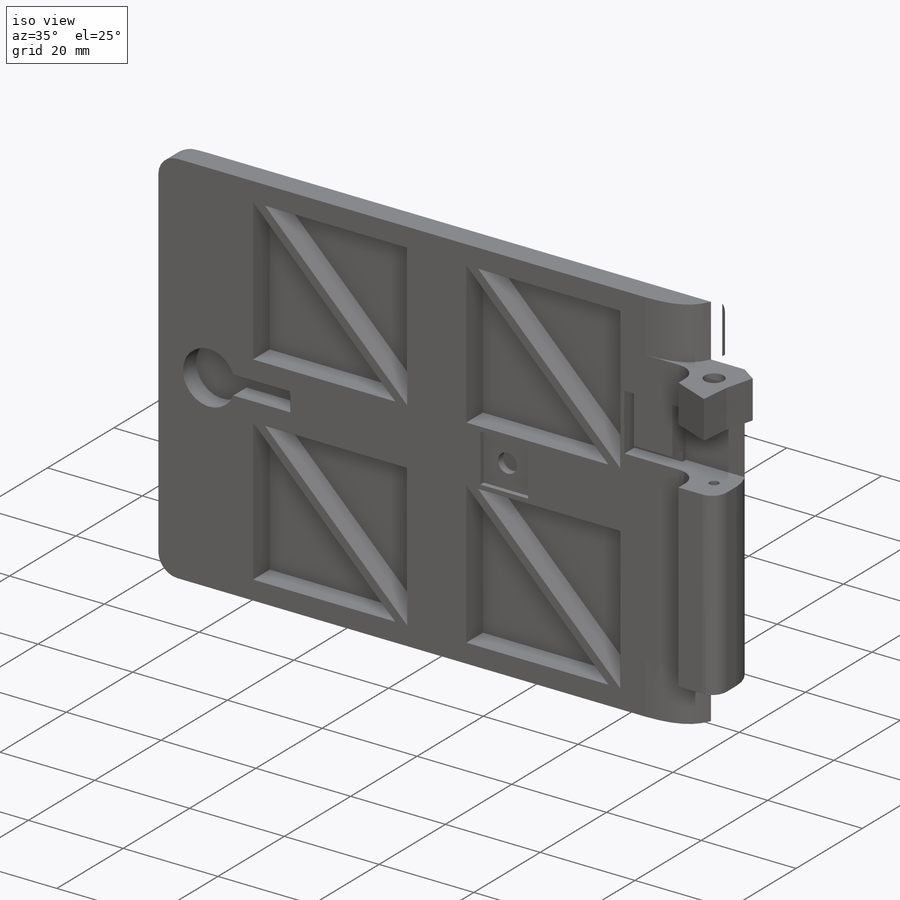
[diagram: iso view]
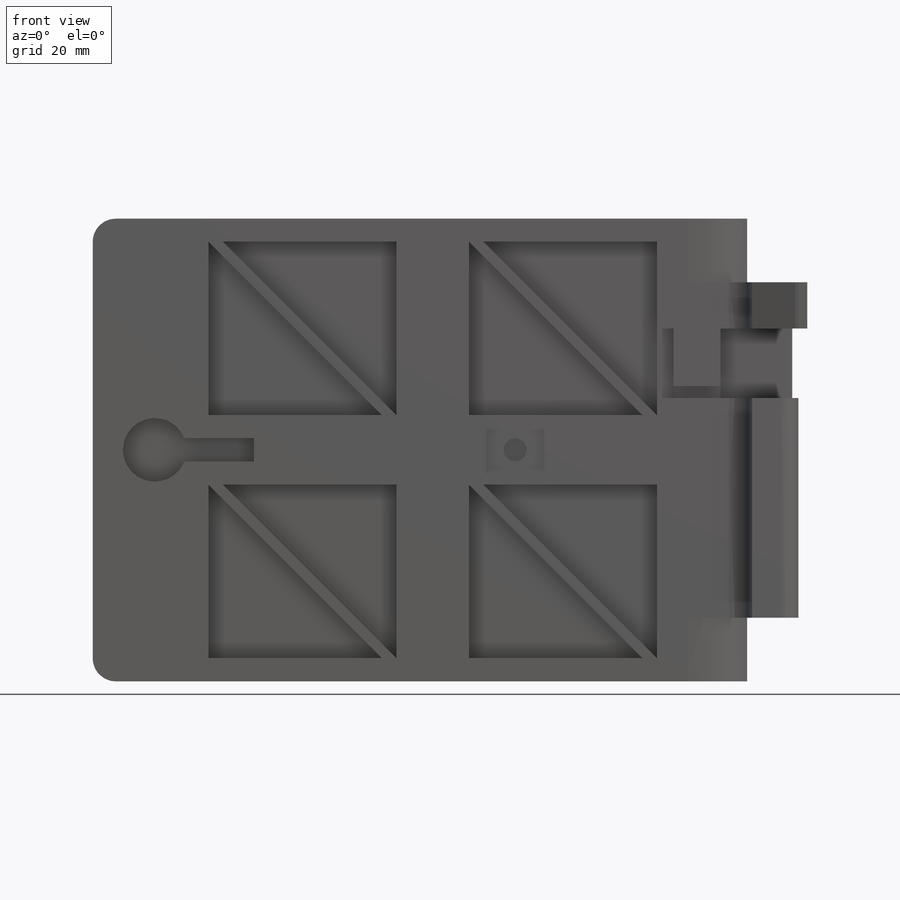
[diagram: front view]
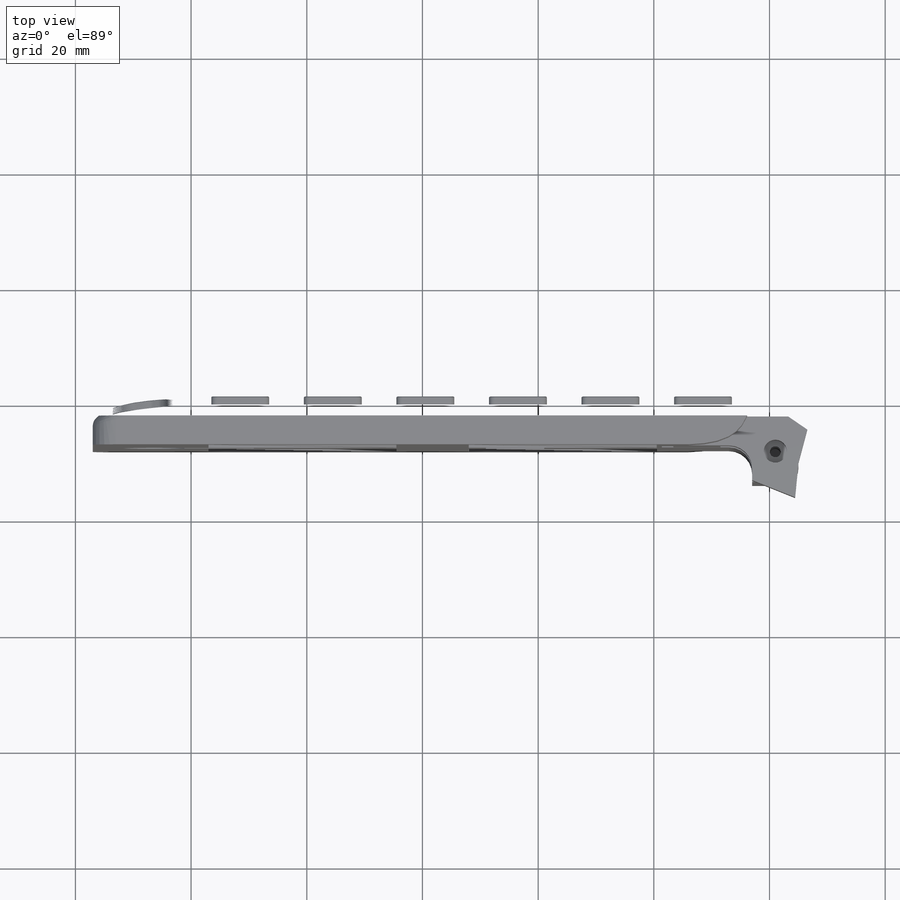
[diagram: top view]
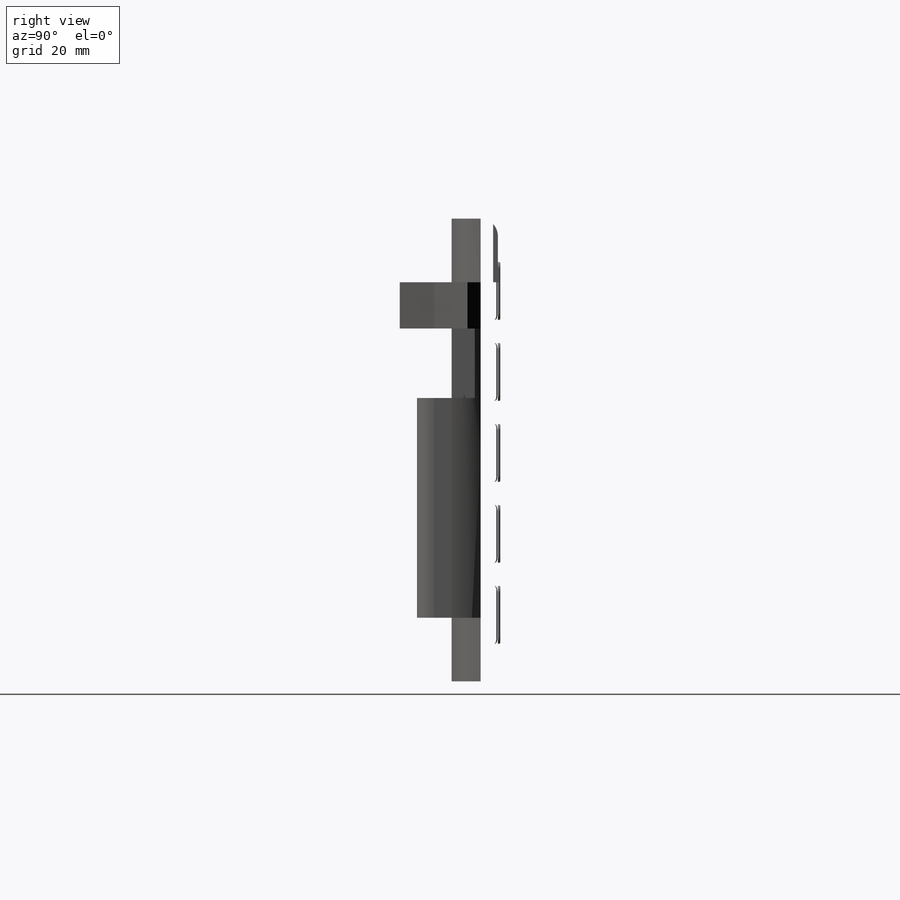
[diagram: right view]
SOLIDWORKS PART (.sldprt)
format: sldprt  version: not decoded by parser v0  size: 1,766,912 bytes
history: native  units: mm
features: sketch x19, fillet x11, cut_extrude x11, extrude x6, pattern_linear x3, plane x2, material x1, mirror x1 (+14 scaffold rows collapsed)
feature tree (68):
  scaffold x14  (default folders/planes/origin — collapsed)
  material  "Material <not specified>"
  sketch  "Sketch1"  dims[D1=114.0mm D2=80.0mm]
  extrude  "Extrude1"  Depth=8mm
  sketch  "Sketch4"  dims[D1=11.0mm D2=11.0mm D3=8.0mm]
  extrude  "Extrude4"  Depth=14mm
  fillet  "Fillet3"  Radius=4mm
  sketch  "Sketch5"  dims[D1=4.0mm D2=5.0mm]
  cut_extrude  "Extrude5"  Depth=7mm
  sketch  "Sketch16"
  cut_extrude  "Extrude14"  Depth=20mm
  fillet  "Fillet4"  Radius=3mm
  sketch  "Sketch6"  dims[D1=15.0mm]
  cut_extrude  "Extrude6"  Depth=11mm
  mirror  "Mirror4"
  fillet  "Fillet6"  Radius=8mm
  sketch  "Sketch7"  dims[c1.D1=12.0mm c1.D2=~23.733052mm c1.D3=5.0mm c2.D2=8.0mm c2.D3=13.5mm]
  cut_extrude  "Extrude7"  Depth=10mm
  sketch  "Sketch8"  dims[c1.D1=23.0mm c1.D2=2.0mm c1.D3=2.0mm c1.D4=10.0mm c2.D1=~10.117397mm]
  cut_extrude  "Extrude9"  Depth=3mm
  sketch  "Sketch17"  dims[D1=1.9mm]
  cut_extrude  "Extrude15"  Depth=25mm
  sketch  "Sketch21"  dims[D1=18.0mm]
  cut_extrude  "Extrude19"  [1 undecoded]
  fillet  "Fillet11"  Radius=3mm
  fillet  "Fillet12"  Radius=3mm
  fillet  "Fillet7"  Radius=4mm
  fillet  "Fillet15"  Radius=2mm
  sketch  "Sketch11"
  sketch  "Sketch12"  dims[c1.D1=50.0mm c1.D2=~39.987498mm c2.D2=~1.145992deg]
  sketch  "Sketch9"  dims[c1.D1=45.0mm c1.D2=33.0mm c2.D1=5.0mm c2.D2=40.0mm]
  cut_extrude  "Extrude10"  Depth=2.5mm
  sketch  "Sketch13"  dims[D1=10.1mm D2=10.1mm]
  cut_extrude  "Extrude11"  Depth=1mm
  sketch  "Sketch14"  dims[c1.D1=30.0mm c1.D2=4.0mm c1.D3=2.5mm c1.D4=8.0mm c1.D5=30.0mm c2.D4=20.0mm]
  cut_extrude  "Extrude12"  Depth=5mm
  pattern_linear  "LPattern1"  Count1=2 Count2=2 Spacing1=45mm Spacing2=42mm
  plane  "Plane1"  Offset=3mm
  sketch  "Sketch15"  dims[D1=10.0mm D2=10.0mm D3=3.5mm D4=3.5mm]
  extrude  "Extrude13"  Depth=0.4mm
  fillet  "Fillet9"  Radius=1mm
  fillet  "Fillet10"  Radius=0.2mm
  sketch  "Sketch19"
  extrude  "Extrude17"  Depth=8mm
  sketch  "Sketch20"  dims[D1=6.0mm D2=8.0mm]
  extrude  "Extrude18"  Depth=8mm
  plane  "Plane3"  Offset=33.5mm
  sketch  "Sketch23"  dims[D3=11.0mm D1=0.4mm D2=0.0mm]
  extrude  "Extrude21"  Depth=10mm
  fillet  "Fillet14"  Radius=1mm
  fillet  "Fillet13"  Radius=0.2mm
  sketch  "Sketch24"  dims[D1=11.0mm D2=12.0mm D3=4.0mm]
  cut_extrude  "Extrude22"  Depth=4mm
  pattern_linear  "LPattern2"  Count1=5 Count2=6 Spacing1=14mm Spacing2=16mm
  pattern_linear  "LPattern3"  Count1=5 Count2=1 Spacing1=14mm Spacing2=50mm
decode coverage: 46 of 51 modeling features carry decoded parameters
note: ~ marks probable driven/reference dimensions
note: 1 parameter value undecoded
note: suppression state not decoded; provenance and decode notes live in map.json
